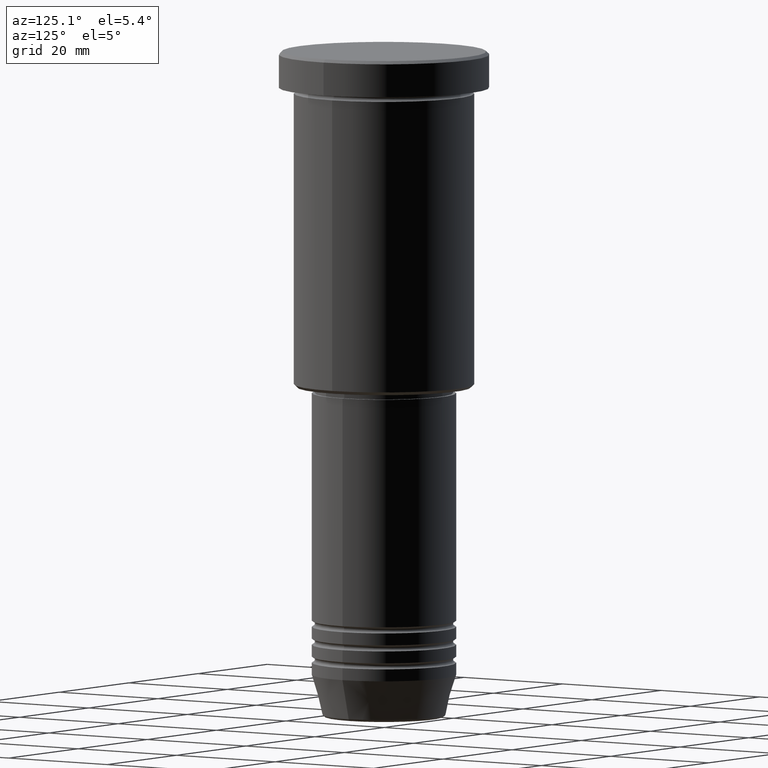
[diagram: clean part render]
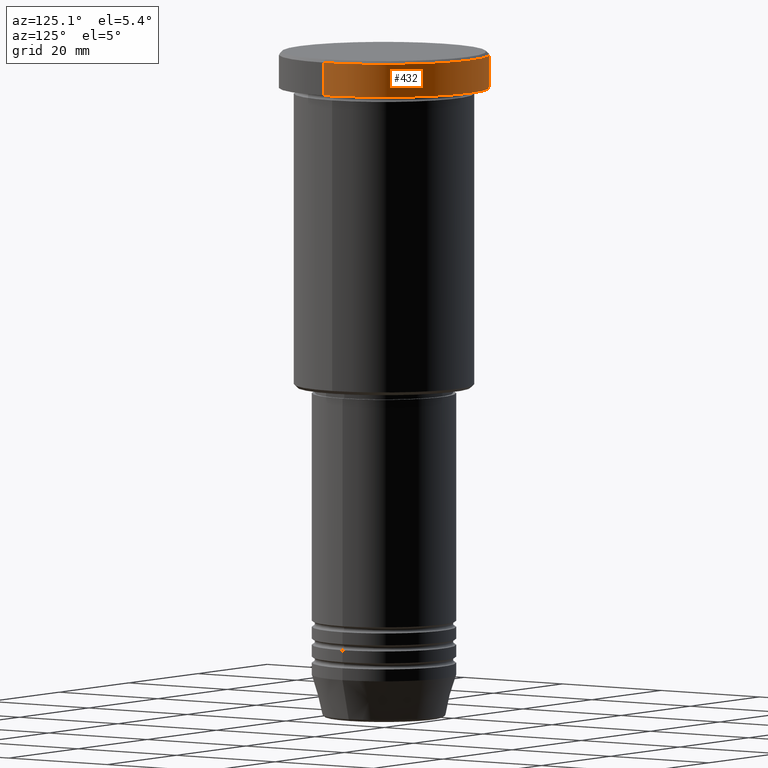
[diagram: same view with one face highlighted and labeled with its STEP entity id]
A machine part, auxiliary view. The second image highlights one B-rep face of the part: STEP entity #432.
In plain terms, the highlighted cylindrical surface (partial cylindrical patch) has radius 17.5 mm, axis along (-0, -0, 1).
Its self-contained STEP definition (entity closure, byte-faithful):
#24 = CIRCLE ( 'NONE', #353, 17.50000000000000000 ) ;
#49 = AXIS2_PLACEMENT_3D ( 'NONE', #788, #513, #1156 ) ;
#61 = LINE ( 'NONE', #1166, #510 ) ;
#77 = DIRECTION ( 'NONE',  ( 1.000000000000000000, 0.000000000000000000, 0.000000000000000000 ) ) ;
#147 = VERTEX_POINT ( 'NONE', #887 ) ;
#162 = AXIS2_PLACEMENT_3D ( 'NONE', #328, #423, #77 ) ;
#221 = FACE_OUTER_BOUND ( 'NONE', #813, .T. ) ;
#249 = CARTESIAN_POINT ( 'NONE',  ( -17.50000000000000000, 2.143131898507868248E-15, 0.000000000000000000 ) ) ;
#257 = VERTEX_POINT ( 'NONE', #1104 ) ;
#303 = VECTOR ( 'NONE', #404, 1000.000000000000000 ) ;
#328 = CARTESIAN_POINT ( 'NONE',  ( 0.000000000000000000, 0.000000000000000000, 0.000000000000000000 ) ) ;
#353 = AXIS2_PLACEMENT_3D ( 'NONE', #700, #902, #792 ) ;
#404 = DIRECTION ( 'NONE',  ( -0.000000000000000000, -0.000000000000000000, 1.000000000000000000 ) ) ;
#423 = DIRECTION ( 'NONE',  ( -0.000000000000000000, -0.000000000000000000, 1.000000000000000000 ) ) ;
#426 = VERTEX_POINT ( 'NONE', #880 ) ;
#432 = ADVANCED_FACE ( 'NONE', ( #221 ), #971, .T. ) ;
#470 = ORIENTED_EDGE ( 'NONE', *, *, #478, .T. ) ;
#478 = EDGE_CURVE ( 'NONE', #426, #590, #24, .T. ) ;
#510 = VECTOR ( 'NONE', #1068, 1000.000000000000000 ) ;
#513 = DIRECTION ( 'NONE',  ( -0.000000000000000000, -0.000000000000000000, 1.000000000000000000 ) ) ;
#536 = CARTESIAN_POINT ( 'NONE',  ( 17.50000000000000000, 0.000000000000000000, -0.5000000000000281997 ) ) ;
#590 = VERTEX_POINT ( 'NONE', #536 ) ;
#600 = LINE ( 'NONE', #249, #303 ) ;
#665 = EDGE_CURVE ( 'NONE', #147, #426, #600, .T. ) ;
#667 = ORIENTED_EDGE ( 'NONE', *, *, #665, .T. ) ;
#700 = CARTESIAN_POINT ( 'NONE',  ( 0.000000000000000000, 0.000000000000000000, -0.5000000000000281997 ) ) ;
#709 = EDGE_CURVE ( 'NONE', #257, #147, #777, .T. ) ;
#777 = CIRCLE ( 'NONE', #49, 17.50000000000000000 ) ;
#788 = CARTESIAN_POINT ( 'NONE',  ( 0.000000000000000000, 0.000000000000000000, -5.999999999999995559 ) ) ;
#792 = DIRECTION ( 'NONE',  ( 1.000000000000000000, 0.000000000000000000, 0.000000000000000000 ) ) ;
#813 = EDGE_LOOP ( 'NONE', ( #1145, #667, #470, #1146 ) ) ;
#880 = CARTESIAN_POINT ( 'NONE',  ( -17.50000000000000000, 2.143131898507868248E-15, -0.5000000000000281997 ) ) ;
#887 = CARTESIAN_POINT ( 'NONE',  ( -17.50000000000000000, 2.143131898507868248E-15, -5.999999999999995559 ) ) ;
#902 = DIRECTION ( 'NONE',  ( 0.000000000000000000, 0.000000000000000000, -1.000000000000000000 ) ) ;
#971 = CYLINDRICAL_SURFACE ( 'NONE', #162, 17.50000000000000000 ) ;
#1068 = DIRECTION ( 'NONE',  ( -0.000000000000000000, -0.000000000000000000, 1.000000000000000000 ) ) ;
#1104 = CARTESIAN_POINT ( 'NONE',  ( 17.50000000000000000, 0.000000000000000000, -5.999999999999995559 ) ) ;
#1145 = ORIENTED_EDGE ( 'NONE', *, *, #709, .T. ) ;
#1146 = ORIENTED_EDGE ( 'NONE', *, *, #1175, .F. ) ;
#1156 = DIRECTION ( 'NONE',  ( 1.000000000000000000, 0.000000000000000000, 0.000000000000000000 ) ) ;
#1166 = CARTESIAN_POINT ( 'NONE',  ( 17.50000000000000000, 0.000000000000000000, 0.000000000000000000 ) ) ;
#1175 = EDGE_CURVE ( 'NONE', #257, #590, #61, .T. ) ;